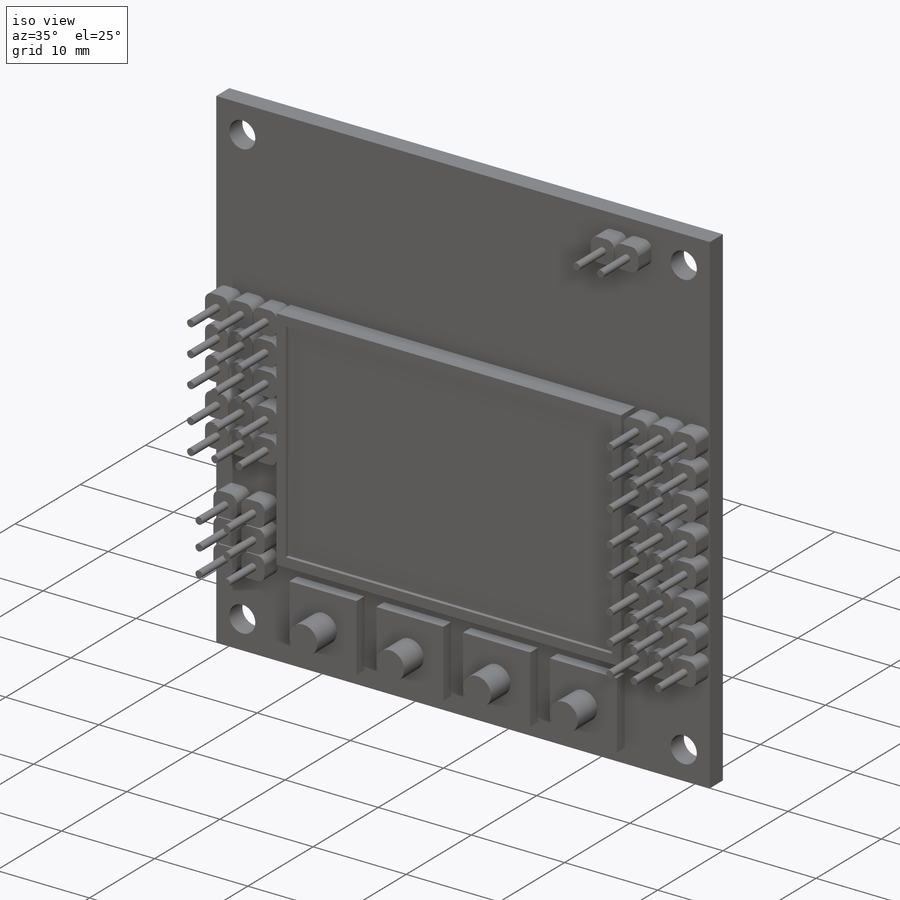
[diagram: iso view]
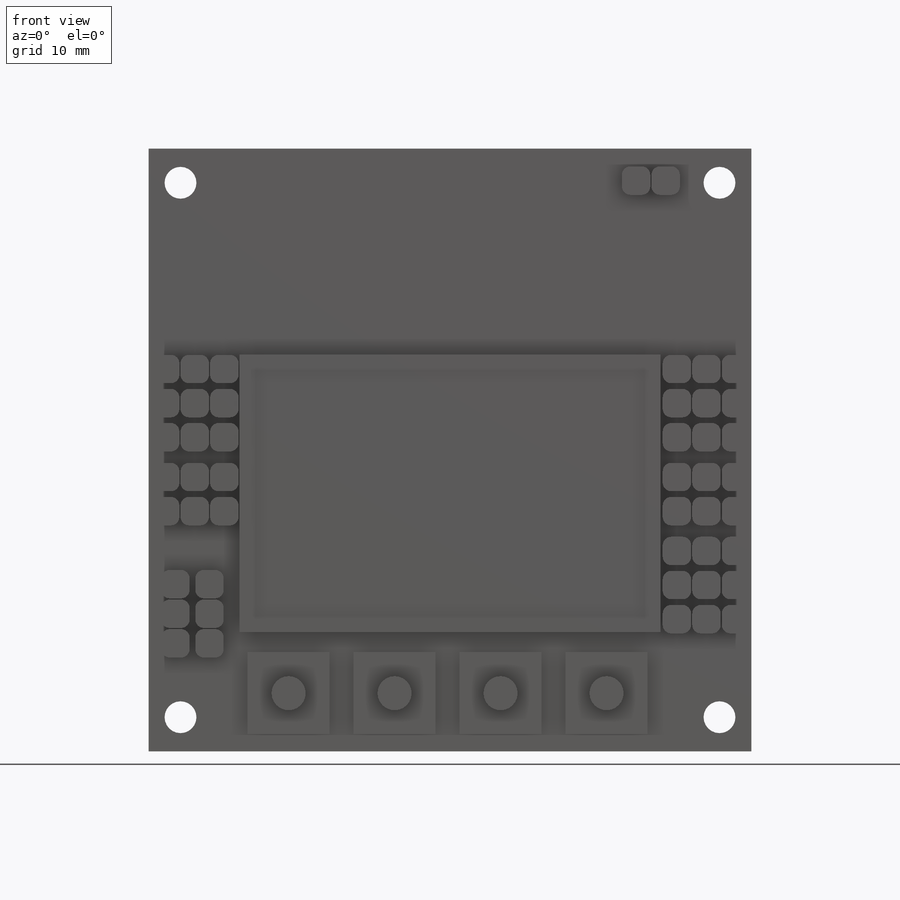
[diagram: front view]
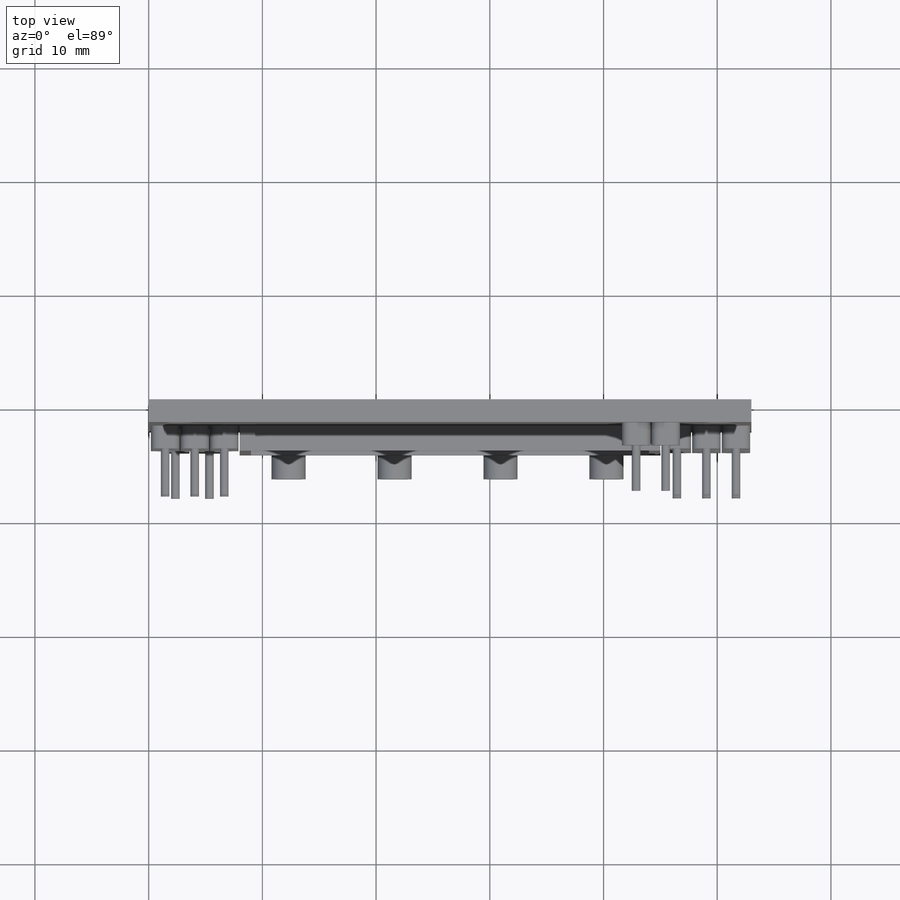
[diagram: top view]
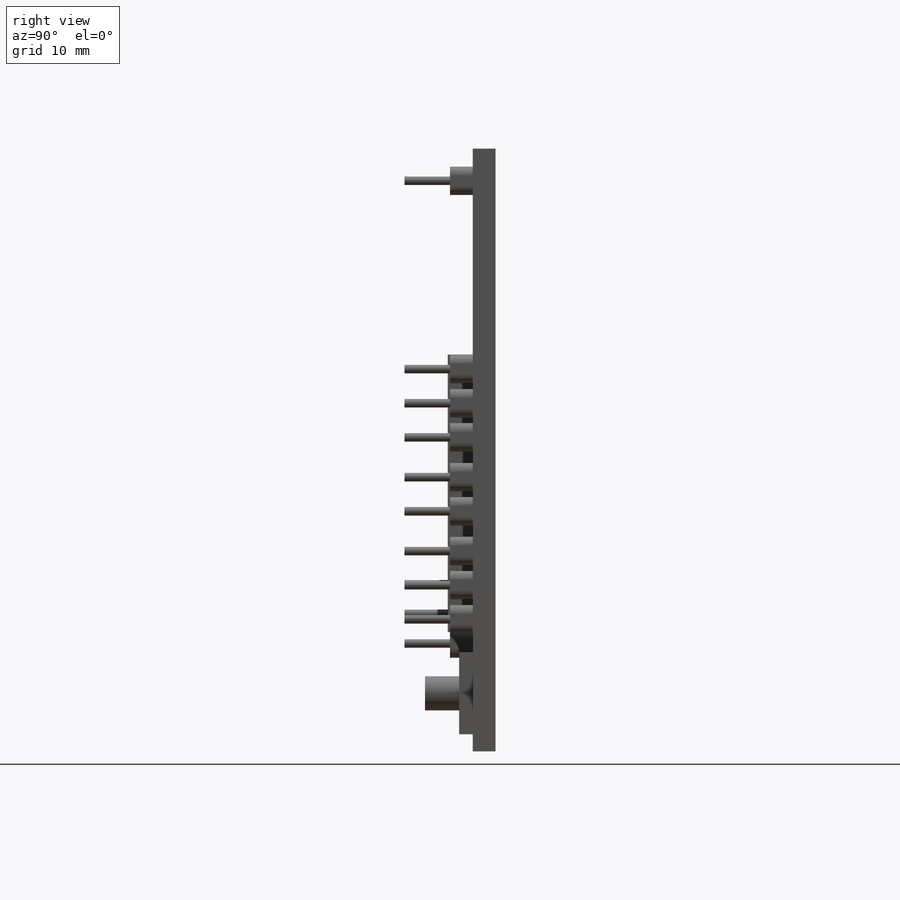
[diagram: right view]
SOLIDWORKS PART (.sldprt)
format: sldprt  version: not decoded by parser v0  size: 1,821,696 bytes
history: native  units: mm
features: sketch x12, extrude x10, pattern_linear x10, cut_extrude x2, material x1 (+11 scaffold rows collapsed)
feature tree (46):
  scaffold x11  (default folders/planes/origin — collapsed)
  material  "Material <not specified>"
  sketch  "Sketch1"  dims[D1=53.0mm D2=53.0mm]
  extrude  "Boss-Extrude1"  Depth=2mm
  sketch  "Sketch2"  dims[c1.D3=2.8mm c1.D1=3.0mm c1.D2=~4.099672mm c2.D2=90.0deg c3.D2=2.8mm]
  cut_extrude  "Cut-Extrude1"  [1 undecoded]
  sketch  "Sketch3"  dims[c1.D3=0.75mm c1.D1=2.5mm c1.D2=2.5mm c2.D1=2.5mm c2.D2=2.5mm]
  extrude  "Boss-Extrude2"  Depth=2mm
  sketch  "Sketch4"  dims[D1=0.75mm]
  extrude  "Boss-Extrude3"  Depth=4mm
  pattern_linear  "LPattern1"  Count1=3 Count2=1 Spacing1=2.6mm Spacing2=10mm
  pattern_linear  "LPattern2"  Count1=3 Count2=1 Spacing1=3mm Spacing2=10mm
  pattern_linear  "LPattern3"  Count1=2 Count2=1 Spacing1=9.5mm Spacing2=10mm
  pattern_linear  "LPattern4"  Count1=2 Count2=1 Spacing1=12.5mm Spacing2=10mm
  pattern_linear  "LPattern5"  Count1=2 Count2=1 Spacing1=45mm Spacing2=10mm
  pattern_linear  "LPattern6"  Count1=2 Count2=1 Spacing1=16mm Spacing2=10mm
  sketch  "Sketch5"  dims[D1=7.2mm D2=7.2mm]
  extrude  "Boss-Extrude4"  Depth=1.2mm
  sketch  "Sketch6"  dims[c1.D1=3.0mm c1.D2=3.0mm c1.D3=3.0mm c2.D2=3.6mm c2.D3=3.6mm]
  extrude  "Boss-Extrude5"  Depth=3mm
  pattern_linear  "LPattern7"  Count1=4 Count2=1 Spacing1=9.32mm Spacing2=10mm
  sketch  "Sketch7"  dims[D3=0.75mm D1=2.5mm D2=2.5mm]
  extrude  "Boss-Extrude6"  Depth=2mm
  sketch  "Sketch8"  dims[D1=0.75mm]
  extrude  "Boss-Extrude7"  Depth=4mm
  pattern_linear  "LPattern8"  Count1=2 Count2=1 Spacing1=2.6mm Spacing2=10mm
  sketch  "Sketch9"  dims[D1=37.0mm D2=24.4mm]
  extrude  "Boss-Extrude8"  Depth=2.2mm
  sketch  "Sketch11"  dims[D1=0.0mm D2=1.0mm]
  cut_extrude  "Cut-Extrude3"  Depth=0.4mm
  sketch  "Sketch12"  dims[D3=0.75mm D1=2.5mm D2=2.5mm]
  extrude  "Boss-Extrude9"  Depth=2mm
  sketch  "Sketch13"  dims[D1=0.75mm]
  extrude  "Boss-Extrude10"  [1 undecoded]
  pattern_linear  "LPattern9"  Count1=3 Count2=1 Spacing1=2.6mm Spacing2=10mm
  pattern_linear  "LPattern10"  Count1=2 Count2=1 Spacing1=3mm Spacing2=10mm
decode coverage: 32 of 34 modeling features carry decoded parameters
note: ~ marks probable driven/reference dimensions
note: 2 parameter values undecoded
note: suppression state not decoded; provenance and decode notes live in map.json
